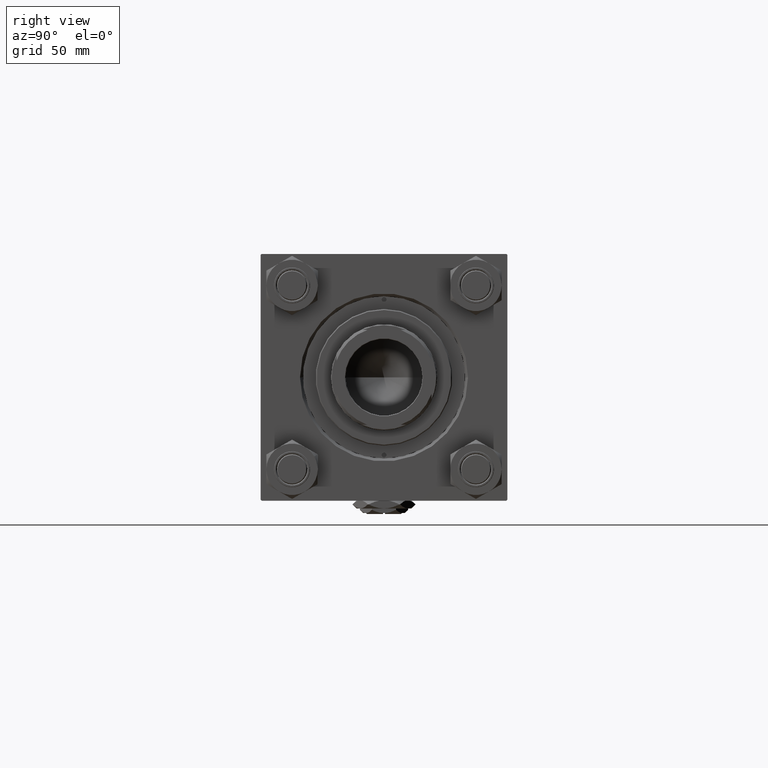
[diagram: clean part render]
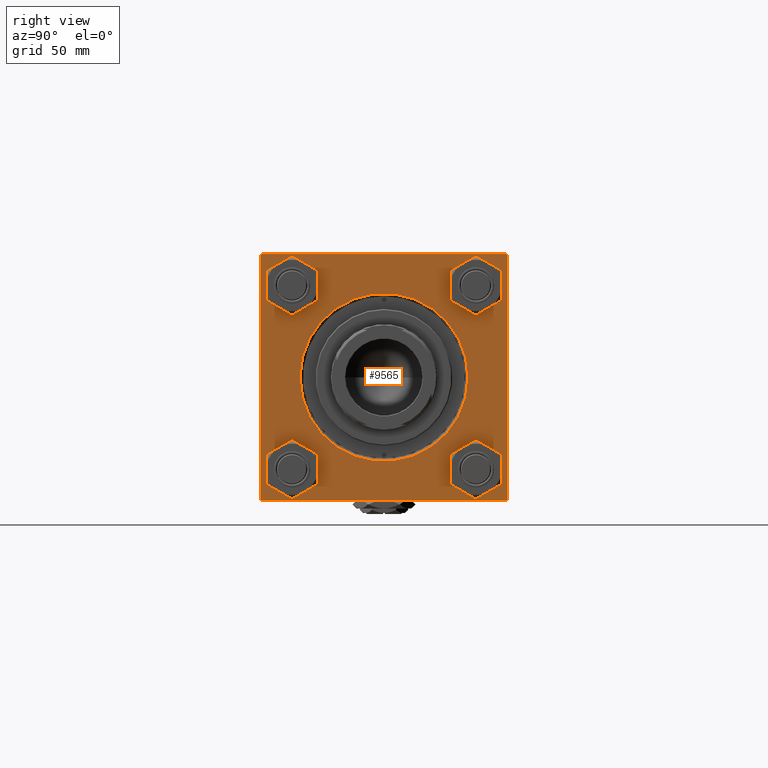
[diagram: same view with one face highlighted and labeled with its STEP entity id]
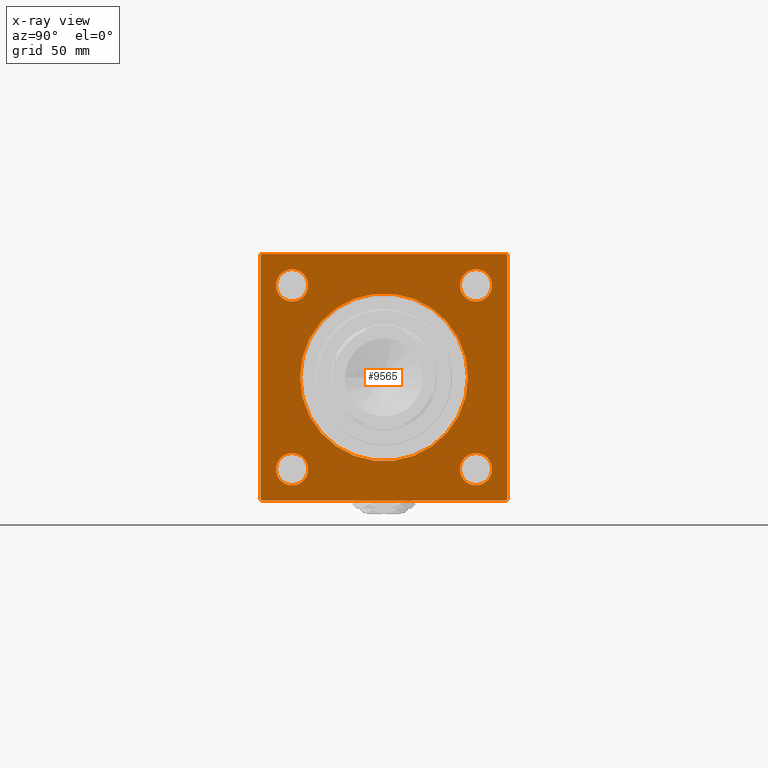
[diagram: x-ray of the same camera — body ghosted, the highlighted face saturated]
A machine part, right view. The second image highlights one B-rep face of the part: STEP entity #9565.
The next image is the same camera in x-ray: the body ghosted, the highlighted face saturated — about 0% of this face is hidden behind the body in this view.
In plain terms, the highlighted planar face has unit normal (-1, 0, 0).
Its self-contained STEP definition (entity closure, byte-faithful):
#141 = EDGE_CURVE ( 'NONE', #27675, #50784, #14019, .T. ) ;
#705 = VERTEX_POINT ( 'NONE', #3267 ) ;
#770 = VECTOR ( 'NONE', #27401, 1000.000000000000000 ) ;
#972 = VECTOR ( 'NONE', #27027, 1000.000000000000000 ) ;
#1325 = VERTEX_POINT ( 'NONE', #24112 ) ;
#1780 = EDGE_CURVE ( 'NONE', #705, #7095, #2700, .T. ) ;
#2058 = FACE_BOUND ( 'NONE', #21802, .T. ) ;
#2447 = DIRECTION ( 'NONE',  ( 0.000000000000000000, 0.7071067811865279218, -0.7071067811865672237 ) ) ;
#2509 = VERTEX_POINT ( 'NONE', #49632 ) ;
#2675 = DIRECTION ( 'NONE',  ( -1.000000000000000000, 0.000000000000000000, -0.000000000000000000 ) ) ;
#2700 = LINE ( 'NONE', #18958, #9801 ) ;
#2911 = CARTESIAN_POINT ( 'NONE',  ( 188.0000000000000000, 48.45000000000000995, 56.94999999999993889 ) ) ;
#3267 = CARTESIAN_POINT ( 'NONE',  ( 188.0000000000000000, -64.99999999999998579, -64.50000000000002842 ) ) ;
#3417 = ORIENTED_EDGE ( 'NONE', *, *, #16426, .T. ) ;
#4828 = CARTESIAN_POINT ( 'NONE',  ( 188.0000000000000000, 64.50000000000002842, -64.99999999999998579 ) ) ;
#4850 = AXIS2_PLACEMENT_3D ( 'NONE', #47616, #50828, #26305 ) ;
#5337 = DIRECTION ( 'NONE',  ( -0.000000000000000000, -0.7071067811865376918, -0.7071067811865574537 ) ) ;
#5395 = ORIENTED_EDGE ( 'NONE', *, *, #26872, .T. ) ;
#5646 = CIRCLE ( 'NONE', #16694, 8.499999999999923617 ) ;
#5929 = CARTESIAN_POINT ( 'NONE',  ( 188.0000000000000000, -64.99999999999998579, 64.50000000000008527 ) ) ;
#6093 = CIRCLE ( 'NONE', #12034, 8.499999999999923617 ) ;
#6199 = ORIENTED_EDGE ( 'NONE', *, *, #43309, .T. ) ;
#6846 = FACE_BOUND ( 'NONE', #50546, .T. ) ;
#6897 = ORIENTED_EDGE ( 'NONE', *, *, #44684, .T. ) ;
#7095 = VERTEX_POINT ( 'NONE', #7623 ) ;
#7510 = CARTESIAN_POINT ( 'NONE',  ( 188.0000000000000000, 0.000000000000000000, 0.000000000000000000 ) ) ;
#7599 = VERTEX_POINT ( 'NONE', #2911 ) ;
#7623 = CARTESIAN_POINT ( 'NONE',  ( 188.0000000000000000, -64.50000000000002842, -65.00000000000001421 ) ) ;
#7930 = CARTESIAN_POINT ( 'NONE',  ( 188.0000000000000000, 65.00000000000002842, 65.00000000000001421 ) ) ;
#8244 = EDGE_CURVE ( 'NONE', #27788, #40085, #39687, .T. ) ;
#8955 = DIRECTION ( 'NONE',  ( 0.000000000000000000, 0.000000000000000000, 1.000000000000000000 ) ) ;
#9371 = CARTESIAN_POINT ( 'NONE',  ( 188.0000000000000000, -48.44999999999998153, 56.94999999999991047 ) ) ;
#9498 = CARTESIAN_POINT ( 'NONE',  ( 188.0000000000000000, -48.45000000000001705, -56.94999999999993889 ) ) ;
#9565 = ADVANCED_FACE ( 'NONE', ( #51885, #2058, #10053, #43356, #6846, #19104 ), #51621, .F. ) ;
#9801 = VECTOR ( 'NONE', #2447, 1000.000000000000000 ) ;
#10053 = FACE_BOUND ( 'NONE', #24110, .T. ) ;
#10087 = DIRECTION ( 'NONE',  ( -1.000000000000000000, 0.000000000000000000, -0.000000000000000000 ) ) ;
#10129 = VERTEX_POINT ( 'NONE', #5929 ) ;
#10336 = CARTESIAN_POINT ( 'NONE',  ( 188.0000000000000000, -48.45000000000001705, -39.95000000000008811 ) ) ;
#10340 = CARTESIAN_POINT ( 'NONE',  ( 188.0000000000000000, 48.45000000000000995, 48.45000000000001705 ) ) ;
#10479 = AXIS2_PLACEMENT_3D ( 'NONE', #20407, #16670, #8955 ) ;
#10517 = DIRECTION ( 'NONE',  ( 0.000000000000000000, -1.000000000000000000, -2.135044278125300850E-16 ) ) ;
#10673 = DIRECTION ( 'NONE',  ( 0.000000000000000000, 0.000000000000000000, 1.000000000000000000 ) ) ;
#10796 = EDGE_CURVE ( 'NONE', #40085, #27788, #42364, .T. ) ;
#10934 = CARTESIAN_POINT ( 'NONE',  ( 188.0000000000000000, -48.44999999999998153, 48.44999999999998863 ) ) ;
#11032 = CARTESIAN_POINT ( 'NONE',  ( 188.0000000000000000, 65.00000000000002842, 65.00000000000001421 ) ) ;
#11232 = VERTEX_POINT ( 'NONE', #40005 ) ;
#12034 = AXIS2_PLACEMENT_3D ( 'NONE', #22810, #38791, #35057 ) ;
#12088 = DIRECTION ( 'NONE',  ( -1.000000000000000000, 0.000000000000000000, -0.000000000000000000 ) ) ;
#12485 = VERTEX_POINT ( 'NONE', #4828 ) ;
#12511 = AXIS2_PLACEMENT_3D ( 'NONE', #30513, #30768, #23042 ) ;
#12899 = CIRCLE ( 'NONE', #42715, 8.499999999999923617 ) ;
#14019 = CIRCLE ( 'NONE', #27645, 8.499999999999923617 ) ;
#14211 = VERTEX_POINT ( 'NONE', #40351 ) ;
#14713 = DIRECTION ( 'NONE',  ( 0.000000000000000000, 0.000000000000000000, -1.000000000000000000 ) ) ;
#14714 = EDGE_CURVE ( 'NONE', #32319, #1325, #32170, .T. ) ;
#15639 = CARTESIAN_POINT ( 'NONE',  ( 188.0000000000000000, 48.45000000000000995, -39.95000000000008811 ) ) ;
#15881 = DIRECTION ( 'NONE',  ( -1.000000000000000000, 0.000000000000000000, -0.000000000000000000 ) ) ;
#16426 = EDGE_CURVE ( 'NONE', #12485, #1325, #47570, .T. ) ;
#16660 = ORIENTED_EDGE ( 'NONE', *, *, #1780, .T. ) ;
#16670 = DIRECTION ( 'NONE',  ( -1.000000000000000000, 0.000000000000000000, -0.000000000000000000 ) ) ;
#16694 = AXIS2_PLACEMENT_3D ( 'NONE', #10340, #10087, #18870 ) ;
#18103 = ORIENTED_EDGE ( 'NONE', *, *, #14714, .F. ) ;
#18180 = AXIS2_PLACEMENT_3D ( 'NONE', #7510, #35492, #51763 ) ;
#18272 = ORIENTED_EDGE ( 'NONE', *, *, #25318, .T. ) ;
#18633 = CARTESIAN_POINT ( 'NONE',  ( 188.0000000000000000, 64.50000000000005684, 65.00000000000001421 ) ) ;
#18731 = LINE ( 'NONE', #34978, #26563 ) ;
#18870 = DIRECTION ( 'NONE',  ( 0.000000000000000000, 0.000000000000000000, 1.000000000000000000 ) ) ;
#18958 = CARTESIAN_POINT ( 'NONE',  ( 188.0000000000000000, -64.50000000000002842, -65.00000000000001421 ) ) ;
#19104 = FACE_OUTER_BOUND ( 'NONE', #27431, .T. ) ;
#20347 = CARTESIAN_POINT ( 'NONE',  ( 188.0000000000000000, 0.000000000000000000, -44.24999999999998579 ) ) ;
#20407 = CARTESIAN_POINT ( 'NONE',  ( 188.0000000000000000, -48.44999999999998153, 48.44999999999998863 ) ) ;
#20469 = CARTESIAN_POINT ( 'NONE',  ( 188.0000000000000000, 48.45000000000000995, -56.94999999999993889 ) ) ;
#21289 = CARTESIAN_POINT ( 'NONE',  ( 188.0000000000000000, 48.45000000000000995, 48.45000000000001705 ) ) ;
#21391 = AXIS2_PLACEMENT_3D ( 'NONE', #52627, #12088, #24870 ) ;
#21802 = EDGE_LOOP ( 'NONE', ( #22553, #31510 ) ) ;
#22553 = ORIENTED_EDGE ( 'NONE', *, *, #10796, .T. ) ;
#22557 = EDGE_CURVE ( 'NONE', #2509, #40304, #31583, .T. ) ;
#22634 = LINE ( 'NONE', #18633, #40285 ) ;
#22810 = CARTESIAN_POINT ( 'NONE',  ( 188.0000000000000000, -48.45000000000001705, -48.45000000000001705 ) ) ;
#23042 = DIRECTION ( 'NONE',  ( 0.000000000000000000, 0.000000000000000000, 1.000000000000000000 ) ) ;
#23307 = LINE ( 'NONE', #43562, #38052 ) ;
#23533 = EDGE_CURVE ( 'NONE', #14211, #37615, #32052, .T. ) ;
#24007 = ORIENTED_EDGE ( 'NONE', *, *, #36544, .T. ) ;
#24074 = EDGE_CURVE ( 'NONE', #37615, #10129, #38367, .T. ) ;
#24110 = EDGE_LOOP ( 'NONE', ( #24007, #6897 ) ) ;
#24112 = CARTESIAN_POINT ( 'NONE',  ( 188.0000000000000000, 65.00000000000002842, -64.50000000000001421 ) ) ;
#24296 = VERTEX_POINT ( 'NONE', #44653 ) ;
#24806 = CARTESIAN_POINT ( 'NONE',  ( 188.0000000000000000, -64.50000000000008527, 65.00000000000000000 ) ) ;
#24870 = DIRECTION ( 'NONE',  ( 0.000000000000000000, 0.000000000000000000, 1.000000000000000000 ) ) ;
#24941 = CARTESIAN_POINT ( 'NONE',  ( 188.0000000000000000, -48.45000000000001705, -48.45000000000001705 ) ) ;
#25318 = EDGE_CURVE ( 'NONE', #10129, #705, #18731, .T. ) ;
#26305 = DIRECTION ( 'NONE',  ( -0.000000000000000000, 0.000000000000000000, 1.000000000000000000 ) ) ;
#26363 = DIRECTION ( 'NONE',  ( 0.000000000000000000, -0.7071067811865279218, 0.7071067811865671127 ) ) ;
#26563 = VECTOR ( 'NONE', #14713, 1000.000000000000000 ) ;
#26872 = EDGE_CURVE ( 'NONE', #40652, #24296, #39417, .T. ) ;
#27027 = DIRECTION ( 'NONE',  ( 0.000000000000000000, -1.000000000000000000, -1.067522139062650425E-16 ) ) ;
#27309 = DIRECTION ( 'NONE',  ( -0.000000000000000000, 0.7071067811865671127, 0.7071067811865279218 ) ) ;
#27374 = VECTOR ( 'NONE', #5337, 999.9999999999998863 ) ;
#27401 = DIRECTION ( 'NONE',  ( 0.000000000000000000, 0.000000000000000000, -1.000000000000000000 ) ) ;
#27431 = EDGE_LOOP ( 'NONE', ( #18272, #16660, #29462, #3417, #18103, #39831, #33672, #38550 ) ) ;
#27645 = AXIS2_PLACEMENT_3D ( 'NONE', #24941, #41202, #45744 ) ;
#27675 = VERTEX_POINT ( 'NONE', #10336 ) ;
#27788 = VERTEX_POINT ( 'NONE', #15639 ) ;
#29097 = CIRCLE ( 'NONE', #18180, 44.24999999999998579 ) ;
#29462 = ORIENTED_EDGE ( 'NONE', *, *, #39279, .F. ) ;
#30513 = CARTESIAN_POINT ( 'NONE',  ( 188.0000000000000000, 48.45000000000000995, -48.45000000000001705 ) ) ;
#30701 = EDGE_CURVE ( 'NONE', #32319, #14211, #22634, .T. ) ;
#30768 = DIRECTION ( 'NONE',  ( -1.000000000000000000, 0.000000000000000000, -0.000000000000000000 ) ) ;
#31369 = EDGE_LOOP ( 'NONE', ( #40835, #5395 ) ) ;
#31510 = ORIENTED_EDGE ( 'NONE', *, *, #8244, .T. ) ;
#31583 = CIRCLE ( 'NONE', #21391, 44.24999999999998579 ) ;
#32052 = LINE ( 'NONE', #11032, #972 ) ;
#32170 = LINE ( 'NONE', #7930, #770 ) ;
#32231 = ORIENTED_EDGE ( 'NONE', *, *, #49415, .T. ) ;
#32319 = VERTEX_POINT ( 'NONE', #46507 ) ;
#33238 = ORIENTED_EDGE ( 'NONE', *, *, #141, .T. ) ;
#33672 = ORIENTED_EDGE ( 'NONE', *, *, #23533, .T. ) ;
#34978 = CARTESIAN_POINT ( 'NONE',  ( 188.0000000000000000, -64.99999999999998579, 65.00000000000000000 ) ) ;
#35057 = DIRECTION ( 'NONE',  ( 0.000000000000000000, 0.000000000000000000, 1.000000000000000000 ) ) ;
#35136 = CIRCLE ( 'NONE', #37679, 8.499999999999923617 ) ;
#35492 = DIRECTION ( 'NONE',  ( -1.000000000000000000, 0.000000000000000000, -0.000000000000000000 ) ) ;
#36385 = CARTESIAN_POINT ( 'NONE',  ( 188.0000000000000000, 48.45000000000000995, -48.45000000000001705 ) ) ;
#36544 = EDGE_CURVE ( 'NONE', #11232, #7599, #5646, .T. ) ;
#36637 = DIRECTION ( 'NONE',  ( 0.000000000000000000, 0.000000000000000000, 1.000000000000000000 ) ) ;
#37569 = CARTESIAN_POINT ( 'NONE',  ( 188.0000000000000000, -64.99999999999998579, 64.50000000000008527 ) ) ;
#37615 = VERTEX_POINT ( 'NONE', #24806 ) ;
#37679 = AXIS2_PLACEMENT_3D ( 'NONE', #10934, #2675, #10673 ) ;
#38052 = VECTOR ( 'NONE', #10517, 1000.000000000000000 ) ;
#38367 = LINE ( 'NONE', #37569, #27374 ) ;
#38550 = ORIENTED_EDGE ( 'NONE', *, *, #24074, .T. ) ;
#38791 = DIRECTION ( 'NONE',  ( -1.000000000000000000, 0.000000000000000000, -0.000000000000000000 ) ) ;
#38853 = AXIS2_PLACEMENT_3D ( 'NONE', #36385, #15881, #36637 ) ;
#39007 = VECTOR ( 'NONE', #27309, 1000.000000000000000 ) ;
#39279 = EDGE_CURVE ( 'NONE', #12485, #7095, #23307, .T. ) ;
#39417 = CIRCLE ( 'NONE', #10479, 8.499999999999923617 ) ;
#39558 = CARTESIAN_POINT ( 'NONE',  ( 188.0000000000000000, 65.00000000000002842, -64.50000000000001421 ) ) ;
#39687 = CIRCLE ( 'NONE', #38853, 8.499999999999923617 ) ;
#39831 = ORIENTED_EDGE ( 'NONE', *, *, #30701, .T. ) ;
#40005 = CARTESIAN_POINT ( 'NONE',  ( 188.0000000000000000, 48.45000000000000995, 39.95000000000008811 ) ) ;
#40085 = VERTEX_POINT ( 'NONE', #20469 ) ;
#40285 = VECTOR ( 'NONE', #26363, 1000.000000000000000 ) ;
#40304 = VERTEX_POINT ( 'NONE', #20347 ) ;
#40351 = CARTESIAN_POINT ( 'NONE',  ( 188.0000000000000000, 64.50000000000005684, 65.00000000000001421 ) ) ;
#40652 = VERTEX_POINT ( 'NONE', #9371 ) ;
#40835 = ORIENTED_EDGE ( 'NONE', *, *, #51003, .T. ) ;
#41202 = DIRECTION ( 'NONE',  ( -1.000000000000000000, 0.000000000000000000, -0.000000000000000000 ) ) ;
#42364 = CIRCLE ( 'NONE', #12511, 8.499999999999923617 ) ;
#42715 = AXIS2_PLACEMENT_3D ( 'NONE', #21289, #45005, #49006 ) ;
#43309 = EDGE_CURVE ( 'NONE', #50784, #27675, #6093, .T. ) ;
#43356 = FACE_BOUND ( 'NONE', #31369, .T. ) ;
#43562 = CARTESIAN_POINT ( 'NONE',  ( 188.0000000000000000, 65.00000000000002842, -64.99999999999998579 ) ) ;
#44653 = CARTESIAN_POINT ( 'NONE',  ( 188.0000000000000000, -48.44999999999998153, 39.95000000000005969 ) ) ;
#44684 = EDGE_CURVE ( 'NONE', #7599, #11232, #12899, .T. ) ;
#45005 = DIRECTION ( 'NONE',  ( -1.000000000000000000, 0.000000000000000000, -0.000000000000000000 ) ) ;
#45744 = DIRECTION ( 'NONE',  ( 0.000000000000000000, 0.000000000000000000, 1.000000000000000000 ) ) ;
#46507 = CARTESIAN_POINT ( 'NONE',  ( 188.0000000000000000, 65.00000000000002842, 64.50000000000001421 ) ) ;
#47265 = ORIENTED_EDGE ( 'NONE', *, *, #22557, .T. ) ;
#47570 = LINE ( 'NONE', #39558, #39007 ) ;
#47616 = CARTESIAN_POINT ( 'NONE',  ( 188.0000000000000000, 0.000000000000000000, 0.000000000000000000 ) ) ;
#48567 = EDGE_LOOP ( 'NONE', ( #6199, #33238 ) ) ;
#49006 = DIRECTION ( 'NONE',  ( 0.000000000000000000, 0.000000000000000000, 1.000000000000000000 ) ) ;
#49415 = EDGE_CURVE ( 'NONE', #40304, #2509, #29097, .T. ) ;
#49632 = CARTESIAN_POINT ( 'NONE',  ( 188.0000000000000000, 5.419062086227035828E-15, 44.24999999999998579 ) ) ;
#50546 = EDGE_LOOP ( 'NONE', ( #32231, #47265 ) ) ;
#50784 = VERTEX_POINT ( 'NONE', #9498 ) ;
#50828 = DIRECTION ( 'NONE',  ( -1.000000000000000000, 0.000000000000000000, -0.000000000000000000 ) ) ;
#51003 = EDGE_CURVE ( 'NONE', #24296, #40652, #35136, .T. ) ;
#51621 = PLANE ( 'NONE',  #4850 ) ;
#51763 = DIRECTION ( 'NONE',  ( 0.000000000000000000, 0.000000000000000000, 1.000000000000000000 ) ) ;
#51885 = FACE_BOUND ( 'NONE', #48567, .T. ) ;
#52627 = CARTESIAN_POINT ( 'NONE',  ( 188.0000000000000000, 0.000000000000000000, 0.000000000000000000 ) ) ;